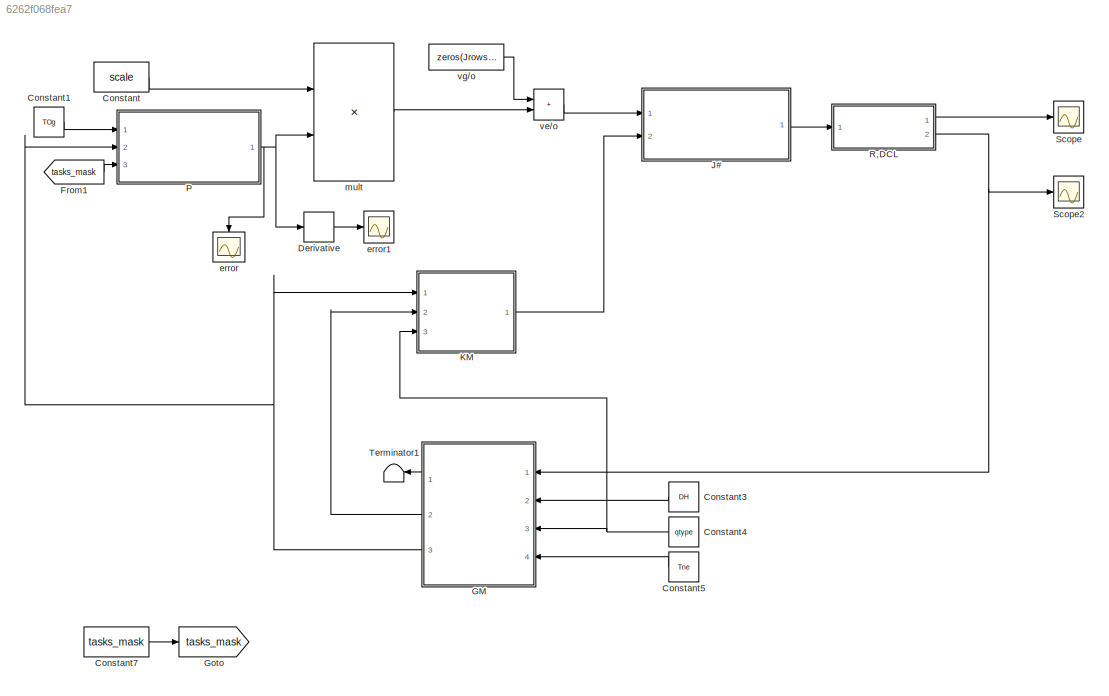
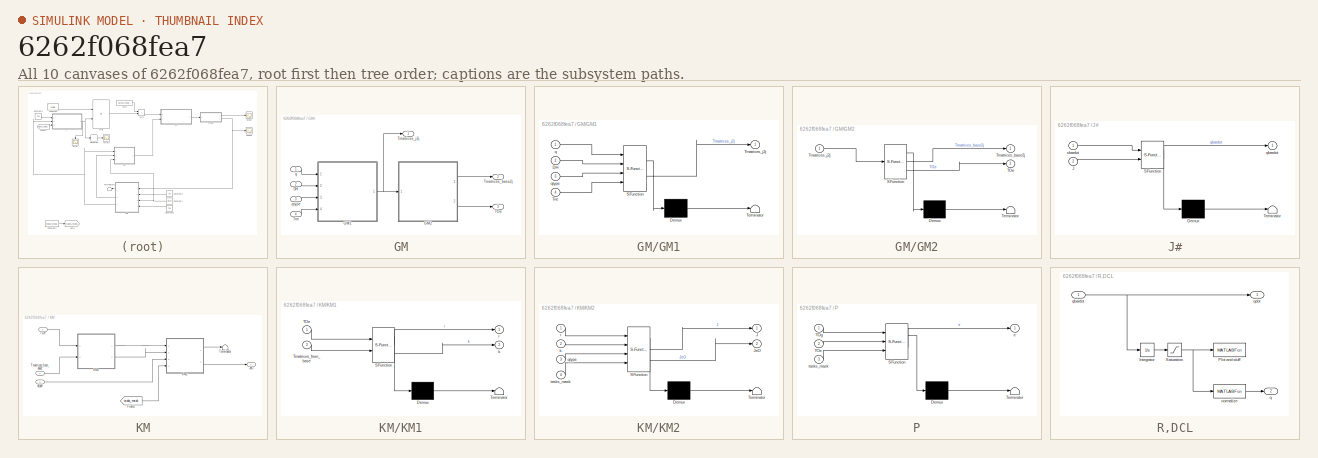
[diagram: thumbnail index - all 10 canvases of the model, root first then tree order]
MODEL slx_6262f068fea7
KIND model
CONFIG AbsTol = auto
CONFIG EnableMultiTasking = off
CONFIG FixedStep = auto
CONFIG MaxStep = auto
CONFIG MinStep = auto
CONFIG RelTol = 1e-3
CONFIG SampleTimeConstraint = Unconstrained
CONFIG SolverName = VariableStepAuto
CONFIG StartTime = 0.0
CONFIG StopTime = 10
BLOCK [Constant] Constant
  Value = scale
BLOCK [Constant] Constant1
  Value = TOg
BLOCK [Constant] Constant3
  NameLocation = top
  Value = DH
BLOCK [Constant] Constant4
  NameLocation = top
  Value = qtype
BLOCK [Constant] Constant5
  NameLocation = top
  Value = Tne
BLOCK [Constant] Constant7
  Value = tasks_mask
BLOCK [Derivative] Derivative
BLOCK [From] From1
  GotoTag = tasks_mask
  TagVisibility = global
BLOCK [SubSystem] GM
  NameLocation = top
  Ports = [4, 3]
  RequestExecContextInheritance = off
BLOCK [Inport] GM/DH
  Port = 2
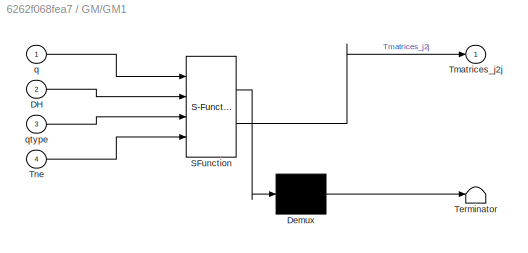
BLOCK [SubSystem] GM/GM1
  ErrorFcn = Stateflow.Translate.translate
  PermitHierarchicalResolution = ExplicitOnly
  Ports = [4, 1]
  RequestExecContextInheritance = off
  SFBlockType = MATLAB Function
  TreatAsAtomicUnit = on
BLOCK [Demux] GM/GM1/ Demux 
  Outputs = 1
  Ports = [1, 1]
BLOCK [S-Function] GM/GM1/ SFunction 
  EnableBusSupport = on
  FunctionName = sf_sfun
  PortCounts = [4 2]
  Ports = [4, 2]
  SFcnIsStateOwnerBlock = off
  SFunctionDeploymentMode = off
  Tag = Stateflow S-Function 5
BLOCK [Terminator] GM/GM1/ Terminator 
BLOCK [Inport] GM/GM1/DH
  Port = 2
BLOCK [Outport] GM/GM1/Tmatrices_j2j
BLOCK [Inport] GM/GM1/Tne
  Port = 4
BLOCK [Inport] GM/GM1/q
BLOCK [Inport] GM/GM1/qtype
  Port = 3
BLOCK [SubSystem] GM/GM2
  ErrorFcn = Stateflow.Translate.translate
  PermitHierarchicalResolution = ExplicitOnly
  Ports = [1, 2]
  RequestExecContextInheritance = off
  SFBlockType = MATLAB Function
  TreatAsAtomicUnit = on
BLOCK [Demux] GM/GM2/ Demux 
  Outputs = 1
  Ports = [1, 1]
BLOCK [S-Function] GM/GM2/ SFunction 
  EnableBusSupport = on
  FunctionName = sf_sfun
  PortCounts = [1 3]
  Ports = [1, 3]
  SFcnIsStateOwnerBlock = off
  SFunctionDeploymentMode = off
  Tag = Stateflow S-Function 6
BLOCK [Terminator] GM/GM2/ Terminator 
BLOCK [Outport] GM/GM2/TOe
  Port = 2
BLOCK [Outport] GM/GM2/Tmatrices_base2j
BLOCK [Inport] GM/GM2/Tmatrices_j2j
BLOCK [Outport] GM/TOe
  Port = 3
BLOCK [Outport] GM/Tmatrices_base2j
  Port = 2
BLOCK [Outport] GM/Tmatrices_j2j
BLOCK [Inport] GM/Tne
  Port = 4
BLOCK [Inport] GM/q
BLOCK [Inport] GM/qtype
  Port = 3
BLOCK [Goto] Goto
  GotoTag = tasks_mask
  TagVisibility = global
BLOCK [SubSystem] J#
  ErrorFcn = Stateflow.Translate.translate
  PermitHierarchicalResolution = ExplicitOnly
  Ports = [2, 1]
  RequestExecContextInheritance = off
  SFBlockType = MATLAB Function
  TreatAsAtomicUnit = on
BLOCK [Demux] J#/ Demux 
  Outputs = 1
  Ports = [1, 1]
BLOCK [S-Function] J#/ SFunction 
  EnableBusSupport = on
  FunctionName = sf_sfun
  PortCounts = [2 2]
  Ports = [2, 2]
  SFcnIsStateOwnerBlock = off
  SFunctionDeploymentMode = off
  Tag = Stateflow S-Function 1
BLOCK [Terminator] J#/ Terminator 
BLOCK [Inport] J#/J
  Port = 2
BLOCK [Outport] J#/qbardot
BLOCK [Inport] J#/xbardot
BLOCK [SubSystem] KM
  Ports = [3, 1]
  RequestExecContextInheritance = off
BLOCK [From] KM/From1
  GotoTag = tasks_mask
  TagVisibility = global
BLOCK [Outport] KM/JeO
BLOCK [SubSystem] KM/KM1
  ErrorFcn = Stateflow.Translate.translate
  PermitHierarchicalResolution = ExplicitOnly
  Ports = [2, 2]
  RequestExecContextInheritance = off
  SFBlockType = MATLAB Function
  TreatAsAtomicUnit = on
BLOCK [Demux] KM/KM1/ Demux 
  Outputs = 1
  Ports = [1, 1]
BLOCK [S-Function] KM/KM1/ SFunction 
  EnableBusSupport = on
  FunctionName = sf_sfun
  PortCounts = [2 3]
  Ports = [2, 3]
  SFcnIsStateOwnerBlock = off
  SFunctionDeploymentMode = off
  Tag = Stateflow S-Function 3
BLOCK [Terminator] KM/KM1/ Terminator 
BLOCK [Inport] KM/KM1/TOe
BLOCK [Inport] KM/KM1/Tmatrices_from_base
  Port = 2
BLOCK [Outport] KM/KM1/k
  Port = 2
BLOCK [Outport] KM/KM1/r
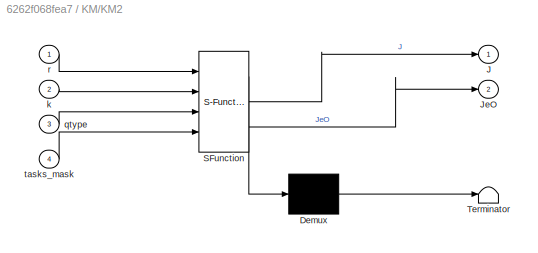
BLOCK [SubSystem] KM/KM2
  ErrorFcn = Stateflow.Translate.translate
  PermitHierarchicalResolution = ExplicitOnly
  Ports = [4, 2]
  RequestExecContextInheritance = off
  SFBlockType = MATLAB Function
  TreatAsAtomicUnit = on
BLOCK [Demux] KM/KM2/ Demux 
  Outputs = 1
  Ports = [1, 1]
BLOCK [S-Function] KM/KM2/ SFunction 
  EnableBusSupport = on
  FunctionName = sf_sfun
  PortCounts = [4 3]
  Ports = [4, 3]
  SFcnIsStateOwnerBlock = off
  SFunctionDeploymentMode = off
  Tag = Stateflow S-Function 7
BLOCK [Terminator] KM/KM2/ Terminator 
BLOCK [Outport] KM/KM2/J
BLOCK [Outport] KM/KM2/JeO
  Port = 2
BLOCK [Inport] KM/KM2/k
  Port = 2
BLOCK [Inport] KM/KM2/qtype
  Port = 3
BLOCK [Inport] KM/KM2/r
BLOCK [Inport] KM/KM2/tasks_mask
  Port = 4
BLOCK [Inport] KM/TOe
BLOCK [Terminator] KM/Terminator
BLOCK [Inport] KM/Tmatrices_from_base
  NameLocation = top
  Port = 2
BLOCK [Inport] KM/qtype
  Port = 3
BLOCK [SubSystem] P
  ErrorFcn = Stateflow.Translate.translate
  PermitHierarchicalResolution = ExplicitOnly
  Ports = [3, 1]
  RequestExecContextInheritance = off
  SFBlockType = MATLAB Function
  TreatAsAtomicUnit = on
BLOCK [Demux] P/ Demux 
  Outputs = 1
  Ports = [1, 1]
BLOCK [S-Function] P/ SFunction 
  EnableBusSupport = on
  FunctionName = sf_sfun
  PortCounts = [3 2]
  Ports = [3, 2]
  SFcnIsStateOwnerBlock = off
  SFunctionDeploymentMode = off
  Tag = Stateflow S-Function 2
BLOCK [Terminator] P/ Terminator 
BLOCK [Inport] P/TOe
  Port = 2
BLOCK [Inport] P/TOg
BLOCK [Outport] P/e
BLOCK [Inport] P/tasks_mask
  Port = 3
BLOCK [SubSystem] R,DCL
  Ports = [1, 2]
  RequestExecContextInheritance = off
BLOCK [Integrator] R,DCL/Integrator
  Ports = [1, 1]
BLOCK [MATLABFcn] R,DCL/Plot and stuff
  MATLABFcn = plot_rob
  OutputDimensions = 0
  Ports = [1]
BLOCK [Saturate] R,DCL/Saturation
  LowerLimit = qmin
  UpperLimit = qmax
BLOCK [MATLABFcn] R,DCL/normalize
  MATLABFcn = normalize
  OutputDimensions = n
  Ports = [1, 1]
BLOCK [Outport] R,DCL/q
  Port = 2
BLOCK [Inport] R,DCL/qbardot
BLOCK [Outport] R,DCL/qdot
BLOCK [Scope] Scope
  Floating = off
  NumInputPorts = 1
  Ports = [1]
  ScopeSpecificationString = Simulink.scopes.TimeScopeBlockCfg('CurrentConfiguration', extmgr.ConfigurationSet(extmgr.Configuration('Core','General UI',true),extmgr.Configuration('Core','Source UI',true),extmgr.Configuration('Sources','WiredSimulink',true,'DataLoggingVariableName','ScopeData1'),extmgr.Configuration('Visuals','Time Domain',true,'SerializedDisplays',{struct('MinYLimReal','-11.89869','MaxYLimReal','7.74605','YLa...<+1577ch>
BLOCK [Scope] Scope2
  Floating = off
  NumInputPorts = 1
  Ports = [1]
  ScopeSpecificationString = Simulink.scopes.TimeScopeBlockCfg('CurrentConfiguration', extmgr.ConfigurationSet(extmgr.Configuration('Core','General UI',true),extmgr.Configuration('Core','Source UI',true),extmgr.Configuration('Sources','WiredSimulink',true,'DataLoggingVariableName','ScopeData2'),extmgr.Configuration('Visuals','Time Domain',true,'SerializedDisplays',{struct('MinYLimReal','-0.96191','MaxYLimReal','0.10688','YLab...<+1529ch>
BLOCK [Terminator] Terminator1
  NameLocation = top
BLOCK [Scope] error
  Floating = off
  NameLocation = left
  NumInputPorts = 1
  Ports = [1]
  ScopeSpecificationString = Simulink.scopes.TimeScopeBlockCfg('CurrentConfiguration', extmgr.ConfigurationSet(extmgr.Configuration('Core','General UI',true),extmgr.Configuration('Core','Source UI',true),extmgr.Configuration('Sources','WiredSimulink',true),extmgr.Configuration('Visuals','Time Domain',true,'SerializedDisplays',{struct('MinYLimReal','-0.45','MaxYLimReal','0.45','YLabelReal','','MinYLimMag','0.00000','MaxYLimMag...<+1524ch>
BLOCK [Scope] error1
  Floating = off
  NumInputPorts = 1
  Ports = [1]
  ScopeSpecificationString = Simulink.scopes.TimeScopeBlockCfg('CurrentConfiguration', extmgr.ConfigurationSet(extmgr.Configuration('Core','General UI',true),extmgr.Configuration('Core','Source UI',true),extmgr.Configuration('Sources','WiredSimulink',true,'DataLoggingVariableName','ScopeData1'),extmgr.Configuration('Visuals','Time Domain',true,'SerializedDisplays',{struct('MinYLimReal','-1.00000','MaxYLimReal','1.00000','YLab...<+1586ch>
BLOCK [Product] mult
  Multiplication = Matrix(*)
  Ports = [2, 1]
BLOCK [Sum] ve//o
  IconShape = rectangular
  Ports = [2, 1]
BLOCK [Constant] vg//o
  Value = zeros(Jrows,1)
LINE Constant1:1 -> P:1
LINE Constant3:1 -> GM:2
NET Constant4:1 -> GM:3, KM:3
LINE Constant5:1 -> GM:4
LINE Constant7:1 -> Goto:1
LINE Constant:1 -> mult:1
LINE Derivative:1 -> error1:1
LINE From1:1 -> P:3
LINE GM/DH:1 -> GM/GM1:2
NET GM/GM1:1 -> GM/GM2:1, GM/Tmatrices_j2j:1
LINE GM/GM2:1 -> GM/Tmatrices_base2j:1
LINE GM/GM2:2 -> GM/TOe:1
LINE GM/Tne:1 -> GM/GM1:4
LINE GM/q:1 -> GM/GM1:1
LINE GM/qtype:1 -> GM/GM1:3
LINE GM:1 -> Terminator1:1
LINE GM:2 -> KM:2
NET GM:3 -> KM:1, P:2
LINE J#:1 -> R,DCL:1
LINE KM/From1:1 -> KM/KM2:4
LINE KM/KM1:1 -> KM/KM2:1
LINE KM/KM1:2 -> KM/KM2:2
LINE KM/KM2:1 -> KM/Terminator:1
LINE KM/KM2:2 -> KM/JeO:1
LINE KM/TOe:1 -> KM/KM1:1
LINE KM/Tmatrices_from_base:1 -> KM/KM1:2
LINE KM/qtype:1 -> KM/KM2:3
LINE KM:1 -> J#:2
NET P:1 -> Derivative:1, error:1, mult:2
LINE R,DCL/Integrator:1 -> R,DCL/Saturation:1
NET R,DCL/Saturation:1 -> R,DCL/Plot and stuff:1, R,DCL/normalize:1
LINE R,DCL/normalize:1 -> R,DCL/q:1
NET R,DCL/qbardot:1 -> R,DCL/Integrator:1, R,DCL/qdot:1
LINE R,DCL:1 -> Scope:1
NET R,DCL:2 -> GM:1, Scope2:1
LINE mult:1 -> ve//o:2
LINE ve//o:1 -> J#:1
LINE vg//o:1 -> ve//o:1
note: NET lines group one-source signal fan-out (src -> all destinations, sorted); 1:1 wires keep LINE
CHART J# states=1 transitions=1
  STATE_LABEL 'eML_blk_kernel()'
  STATE_LABEL 'SCRIPT:\nfunction qbardot = fcn(xbardot,J)\n    \n    [U,Sigma,V] = svd(J);\n    Sigmasharp = pinv(Sigma);\n   \n    l = rank(Sigma);\n    SVO_thr = 0.005;\n    \n    for i = 1 : l\n        singval = Sigma(i,i);\n        if singval < SVO_thr\n            psquare = (1 - singval / SVO_thr)^2; % simple straight line reg function\n            Sigmasharp(i,i) = singval / (singval^2 + psquare);\n        end\n    end\n ...<+74ch>'
CHART P states=1 transitions=1
  STATE_LABEL 'eML_blk_kernel()'
  STATE_LABEL 'SCRIPT:\nfunction e = fcn(TOg,TOe,tasks_mask)\n    %a\n    % R = Rab\n    %b\n    \n    rows = max(size(tasks_mask)) * 3; % num of rows of error vector\n    e = zeros(rows,1); % inititalize error vector\n    align = tasks_mask(1) == 1 || tasks_mask(1) == 3; % if must align then true\n    dist = tasks_mask(1) == 2 || tasks_mask(1) == 3; % if must zero distance then true\n    \n    ROg = TOg(1:3,1:3); % extrac...<+1026ch>'
CHART KM/KM1 states=1 transitions=1
  STATE_LABEL 'eML_blk_kernel()'
  STATE_LABEL 'SCRIPT:\n% Function that computes quantities needed in computing the basic Jacobian matrices of the manipulator.\n% Input: a vector of n+1 trasformation matrices TO1,TO2,...,TOn,TOe\n% Outputs:\n% k = [ki], i = 1,...,n+1 (joints operation axes)\n% r = [rij], i = 1,...,n+1, j = 1,...,i-1 (ray vectors)\n\nfunction [r, k] = KM1(TOe,Tmatrices_from_base)\n    n = size(Tmatrices_from_base,3); % store number of ...<+600ch>'
CHART GM/GM1 states=1 transitions=1
  STATE_LABEL 'eML_blk_kernel()'
  STATE_LABEL 'SCRIPT:\nfunction Tmatrices_j2j = gm1 (q, DH, qtype, Tne)\n    \n    % DH = each row has, in order, theta, d, a, alpha\n    qsize = size(q);\n    n = qsize(1);\n    Tmatrices_j2j = zeros(4,4,n+1);\n    \n    for i = 1:n\n        T_bar = transl(DH(i,3), 0, 0) * r2t(rotx(DH(i,4))) ...\n           * r2t(rotz(DH(i,1))) * transl(0, 0, DH(i,2));\n        \n        % qtype(i) is 0 if rot, 1 if transl\n        if (qty...<+492ch>'
CHART GM/GM2 states=1 transitions=1
  STATE_LABEL 'eML_blk_kernel()'
  STATE_LABEL 'SCRIPT:\nfunction [Tmatrices_base2j, TOe] = gm2 (Tmatrices_j2j)\n    \n    n = size(Tmatrices_j2j,3) - 1;\n    Ttemp = eye(4,4);\n    Tmatrices_base2j = zeros(4,4,n);\n    for ii = 1 : n\n        Ttemp = Ttemp * Tmatrices_j2j(:,:,ii);\n        Tmatrices_base2j(:,:,ii) = Ttemp; % T from 0 to ii\n    end\n    TOe = Tmatrices_base2j(:,:,n) * Tmatrices_j2j(:,:,n+1);\nend\n'
CHART KM/KM2 states=1 transitions=1
  STATE_LABEL 'eML_blk_kernel()'
  STATE_LABEL 'SCRIPT:\n% Function that computes the basic Jacobian matrices of the manipulator.\n% Inputs:\n% k, r = outputs of KM1.\n% tplg = topology of the manipulator.\n%\n% Outputs:\n% JA = array of n+1 Jacobian matrices JA1/O,...,JAe/O\n% JL = array of n+1 Jacobian matrices JL1/O,...,JLe/O\n\nfunction [J,JeO]  = KM2(r,k,qtype,tasks_mask)\n    n = size(k,2) - 1; % num of joints\n    \n    Jrows = max(size(tasks_mask)) ...<+752ch>'
CHART  states=0 transitions=0
CHART  states=0 transitions=0
CHART  states=0 transitions=0
CHART  states=0 transitions=0
CHART  states=0 transitions=0
CHART  states=0 transitions=0
